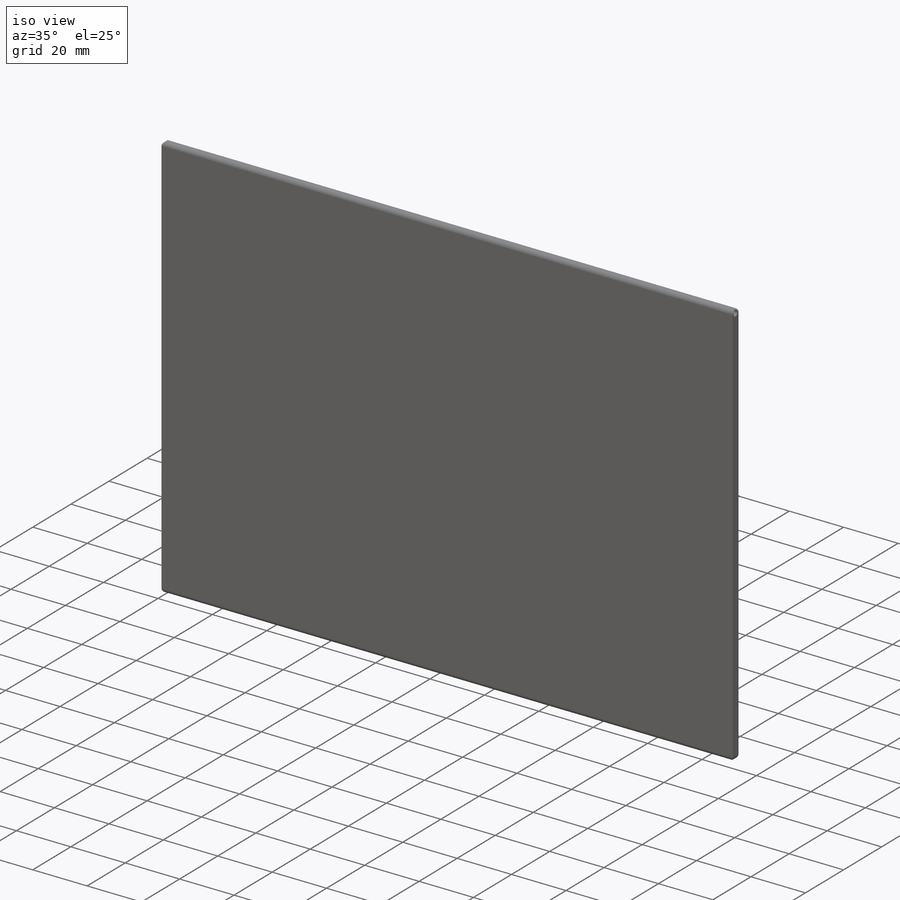
[diagram: iso view]
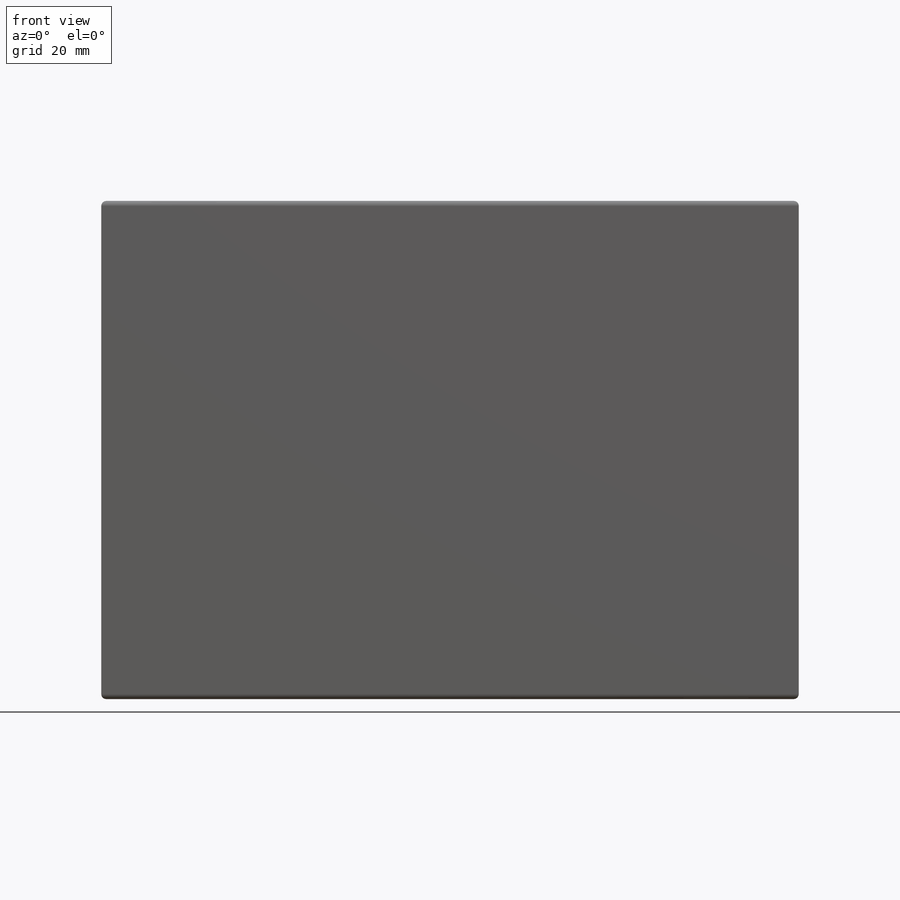
[diagram: front view]
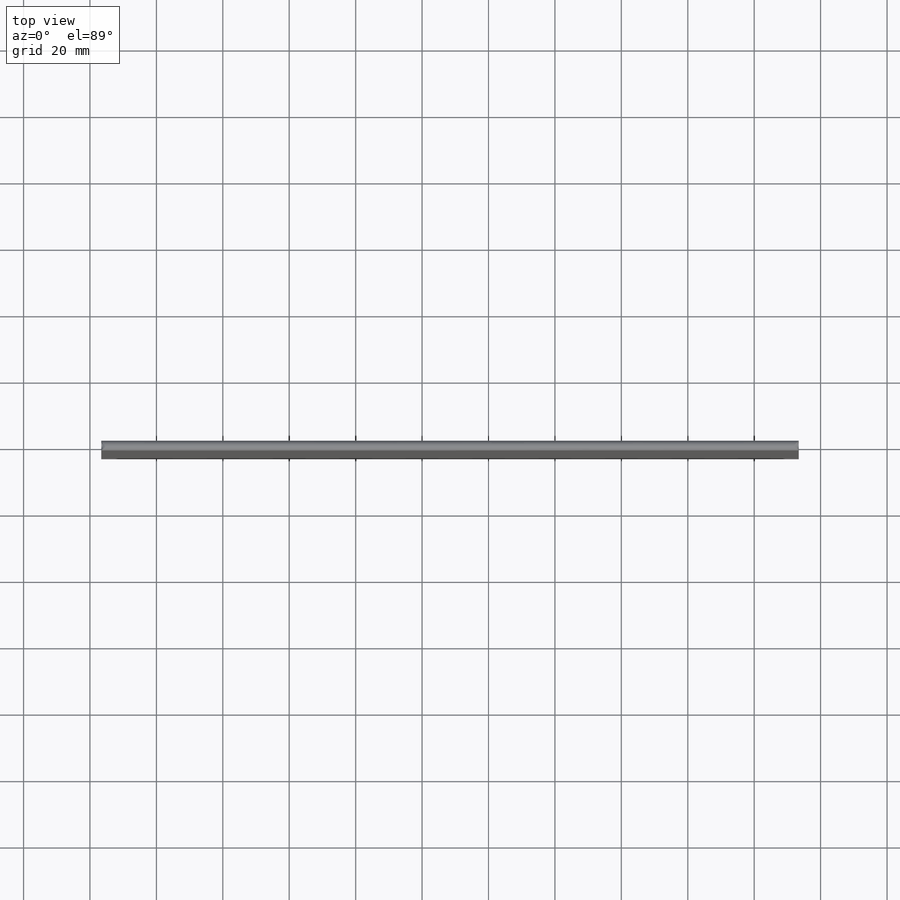
[diagram: top view]
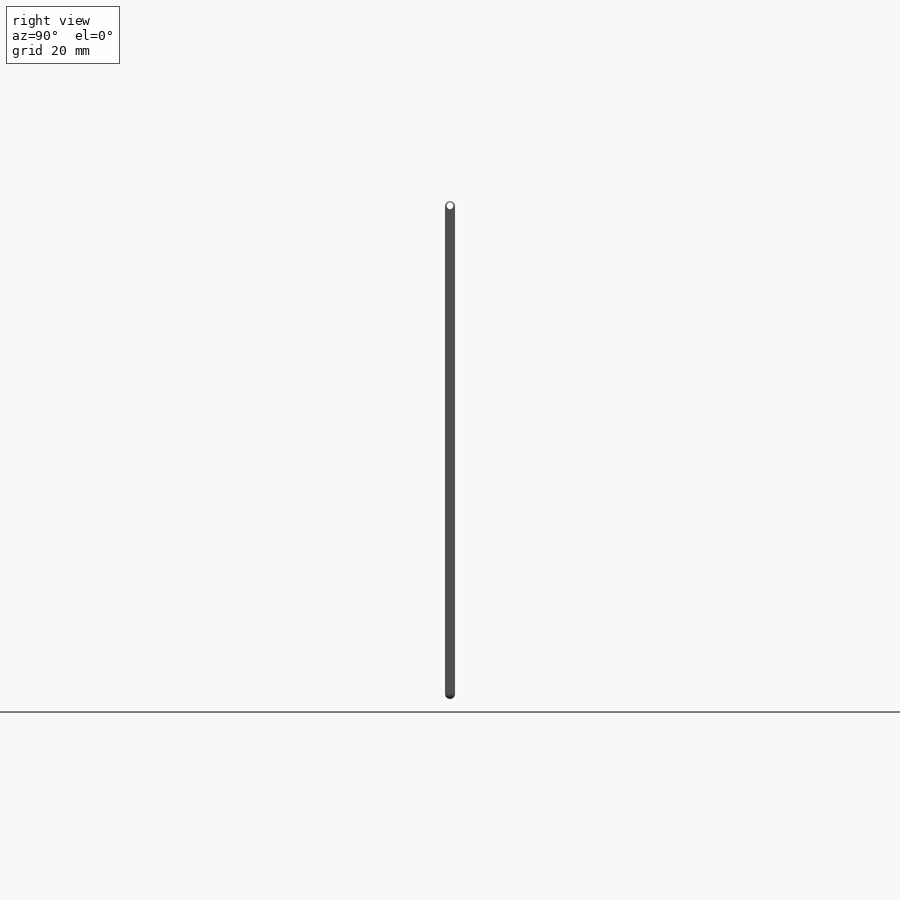
[diagram: right view]
SOLIDWORKS PART (.sldprt)
format: sldprt  version: not decoded by parser v0  size: 152,064 bytes
history: native  units: mm
features: plane x3, sketch x2, fillet x2, material x1, extrude x1, cut_extrude x1 (+13 scaffold rows collapsed)
feature tree (23):
  scaffold x13  (default folders/planes/origin — collapsed)
  material  "A-玻璃纤维"
  plane  "前视基准面"
  plane  "上视基准面"
  plane  "右视基准面"
  sketch  "草图1"  dims[D1=150.0mm D2=210.0mm]
  extrude  "凸台-拉伸1"  Depth=3mm
  sketch  "草图2"  dims[D2=2.0mm D1=1.5mm]
  cut_extrude  "切除-拉伸1"  [1 undecoded]
  fillet  "圆角2"  Radius=1.5mm
  fillet  "圆角3"  Radius=1.5mm
decode coverage: 5 of 6 modeling features carry decoded parameters
note: 1 parameter value undecoded
note: suppression state not decoded; provenance and decode notes live in map.json
